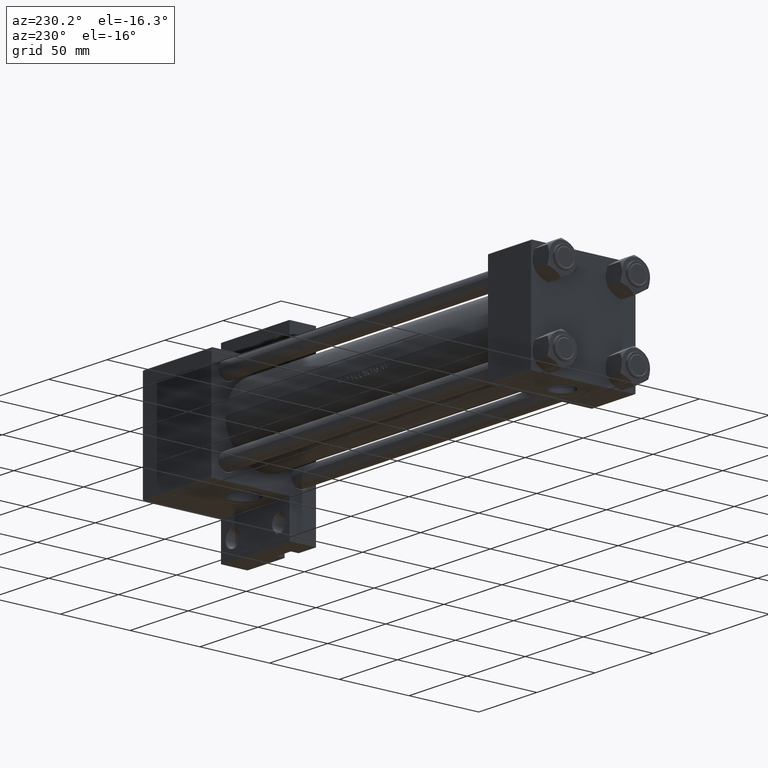
[diagram: clean part render]
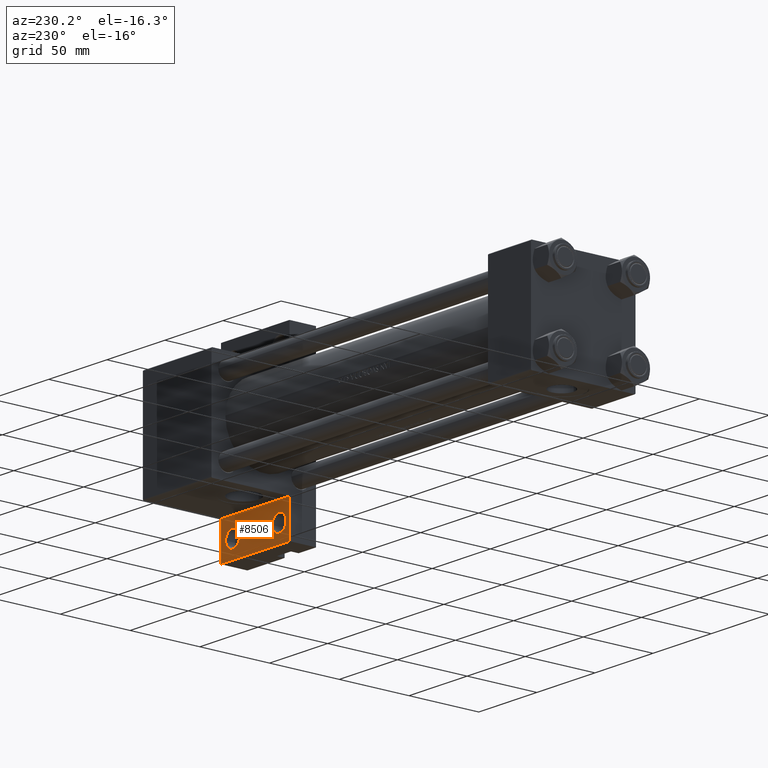
[diagram: same view with one face highlighted and labeled with its STEP entity id]
A machine part, auxiliary view. The second image highlights one B-rep face of the part: STEP entity #8506.
In plain terms, the highlighted planar face has unit normal (0, 1, 0).
Its self-contained STEP definition (entity closure, byte-faithful):
#1195 = PLANE ( 'NONE',  #15502 ) ;
#1897 = AXIS2_PLACEMENT_3D ( 'NONE', #43182, #22023, #47280 ) ;
#2372 = AXIS2_PLACEMENT_3D ( 'NONE', #33907, #22842, #12000 ) ;
#2761 = DIRECTION ( 'NONE',  ( 1.000000000000000000, 0.000000000000000000, 0.000000000000000000 ) ) ;
#3318 = ORIENTED_EDGE ( 'NONE', *, *, #46120, .F. ) ;
#3678 = ORIENTED_EDGE ( 'NONE', *, *, #40528, .F. ) ;
#3940 = VERTEX_POINT ( 'NONE', #12076 ) ;
#4226 = VERTEX_POINT ( 'NONE', #7461 ) ;
#5066 = CARTESIAN_POINT ( 'NONE',  ( 274.9999999999999432, 63.49999999999997158, -18.50000000000000000 ) ) ;
#5341 = VERTEX_POINT ( 'NONE', #25571 ) ;
#6385 = DIRECTION ( 'NONE',  ( -0.000000000000000000, -0.000000000000000000, -1.000000000000000000 ) ) ;
#7353 = EDGE_LOOP ( 'NONE', ( #32537, #11378 ) ) ;
#7368 = CARTESIAN_POINT ( 'NONE',  ( 278.0004999999999313, 51.00000000000001421, -18.50000000000000000 ) ) ;
#7461 = CARTESIAN_POINT ( 'NONE',  ( 318.0004999999999313, 51.00000000000000000, -18.50000000000000000 ) ) ;
#8416 = CARTESIAN_POINT ( 'NONE',  ( 0.000000000000000000, 0.000000000000000000, -18.50000000000000000 ) ) ;
#8506 = ADVANCED_FACE ( 'NONE', ( #45247, #34176, #22644 ), #1195, .T. ) ;
#8918 = LINE ( 'NONE', #5066, #35507 ) ;
#9957 = VERTEX_POINT ( 'NONE', #37804 ) ;
#10127 = VERTEX_POINT ( 'NONE', #24074 ) ;
#10278 = LINE ( 'NONE', #39637, #19579 ) ;
#11378 = ORIENTED_EDGE ( 'NONE', *, *, #46878, .T. ) ;
#11630 = ORIENTED_EDGE ( 'NONE', *, *, #12049, .T. ) ;
#12000 = DIRECTION ( 'NONE',  ( 1.000000000000000000, 0.000000000000000000, 0.000000000000000000 ) ) ;
#12049 = EDGE_CURVE ( 'NONE', #32002, #4226, #44959, .T. ) ;
#12076 = CARTESIAN_POINT ( 'NONE',  ( 274.9999999999999432, 37.50000000000000000, -18.50000000000000355 ) ) ;
#12281 = DIRECTION ( 'NONE',  ( 0.000000000000000000, 0.000000000000000000, 1.000000000000000000 ) ) ;
#13633 = VERTEX_POINT ( 'NONE', #7368 ) ;
#15502 = AXIS2_PLACEMENT_3D ( 'NONE', #8416, #12281, #26951 ) ;
#15647 = EDGE_CURVE ( 'NONE', #28831, #13633, #40318, .T. ) ;
#16568 = DIRECTION ( 'NONE',  ( -0.000000000000000000, -0.000000000000000000, -1.000000000000000000 ) ) ;
#17297 = AXIS2_PLACEMENT_3D ( 'NONE', #21089, #6385, #2761 ) ;
#18200 = VECTOR ( 'NONE', #27155, 1000.000000000000000 ) ;
#18821 = AXIS2_PLACEMENT_3D ( 'NONE', #41827, #16568, #23550 ) ;
#19312 = EDGE_CURVE ( 'NONE', #9957, #3940, #31010, .T. ) ;
#19579 = VECTOR ( 'NONE', #25673, 1000.000000000000000 ) ;
#20047 = CARTESIAN_POINT ( 'NONE',  ( 289.9995000000000118, 51.00000000000001421, -18.50000000000000000 ) ) ;
#20596 = EDGE_CURVE ( 'NONE', #5341, #10127, #46107, .T. ) ;
#20605 = CARTESIAN_POINT ( 'NONE',  ( 274.9999999999999432, 63.49999999999997158, -18.50000000000000000 ) ) ;
#21089 = CARTESIAN_POINT ( 'NONE',  ( 284.0000000000000000, 51.00000000000001421, -18.50000000000000000 ) ) ;
#22023 = DIRECTION ( 'NONE',  ( -0.000000000000000000, -0.000000000000000000, -1.000000000000000000 ) ) ;
#22644 = FACE_OUTER_BOUND ( 'NONE', #43641, .T. ) ;
#22842 = DIRECTION ( 'NONE',  ( -0.000000000000000000, -0.000000000000000000, -1.000000000000000000 ) ) ;
#23550 = DIRECTION ( 'NONE',  ( 1.000000000000000000, 0.000000000000000000, 0.000000000000000000 ) ) ;
#24074 = CARTESIAN_POINT ( 'NONE',  ( 333.9999999999999432, 63.49999999999997158, -18.50000000000000000 ) ) ;
#25571 = CARTESIAN_POINT ( 'NONE',  ( 274.9999999999999432, 63.49999999999997158, -18.50000000000000000 ) ) ;
#25673 = DIRECTION ( 'NONE',  ( 0.000000000000000000, -1.000000000000000000, 0.000000000000000000 ) ) ;
#26108 = CARTESIAN_POINT ( 'NONE',  ( 329.9995000000000118, 51.00000000000000000, -18.50000000000000000 ) ) ;
#26951 = DIRECTION ( 'NONE',  ( 1.000000000000000000, 0.000000000000000000, -0.000000000000000000 ) ) ;
#27155 = DIRECTION ( 'NONE',  ( -1.000000000000000000, 1.058475341273983980E-15, -0.000000000000000000 ) ) ;
#28831 = VERTEX_POINT ( 'NONE', #20047 ) ;
#29027 = ORIENTED_EDGE ( 'NONE', *, *, #35182, .T. ) ;
#30356 = CIRCLE ( 'NONE', #17297, 5.999500000000046462 ) ;
#30771 = CARTESIAN_POINT ( 'NONE',  ( 274.9999999999999432, 37.50000000000000000, -18.50000000000000000 ) ) ;
#31010 = LINE ( 'NONE', #30771, #18200 ) ;
#32002 = VERTEX_POINT ( 'NONE', #26108 ) ;
#32392 = CIRCLE ( 'NONE', #2372, 5.999500000000046462 ) ;
#32537 = ORIENTED_EDGE ( 'NONE', *, *, #15647, .T. ) ;
#33907 = CARTESIAN_POINT ( 'NONE',  ( 323.9999999999999432, 51.00000000000000000, -18.50000000000000000 ) ) ;
#34176 = FACE_BOUND ( 'NONE', #7353, .T. ) ;
#34364 = VECTOR ( 'NONE', #35270, 1000.000000000000000 ) ;
#35182 = EDGE_CURVE ( 'NONE', #4226, #32002, #32392, .T. ) ;
#35270 = DIRECTION ( 'NONE',  ( 1.000000000000000000, 0.000000000000000000, 0.000000000000000000 ) ) ;
#35507 = VECTOR ( 'NONE', #46214, 1000.000000000000000 ) ;
#37804 = CARTESIAN_POINT ( 'NONE',  ( 333.9999999999999432, 37.49999999999993605, -18.50000000000000000 ) ) ;
#39378 = ORIENTED_EDGE ( 'NONE', *, *, #19312, .F. ) ;
#39637 = CARTESIAN_POINT ( 'NONE',  ( 333.9999999999999432, 63.49999999999997158, -18.50000000000000000 ) ) ;
#40318 = CIRCLE ( 'NONE', #18821, 5.999500000000046462 ) ;
#40528 = EDGE_CURVE ( 'NONE', #3940, #5341, #8918, .T. ) ;
#41827 = CARTESIAN_POINT ( 'NONE',  ( 284.0000000000000000, 51.00000000000001421, -18.50000000000000000 ) ) ;
#42089 = ORIENTED_EDGE ( 'NONE', *, *, #20596, .F. ) ;
#43182 = CARTESIAN_POINT ( 'NONE',  ( 323.9999999999999432, 51.00000000000000000, -18.50000000000000000 ) ) ;
#43641 = EDGE_LOOP ( 'NONE', ( #3678, #39378, #3318, #42089 ) ) ;
#43826 = EDGE_LOOP ( 'NONE', ( #11630, #29027 ) ) ;
#44959 = CIRCLE ( 'NONE', #1897, 5.999500000000046462 ) ;
#45247 = FACE_BOUND ( 'NONE', #43826, .T. ) ;
#46107 = LINE ( 'NONE', #20605, #34364 ) ;
#46120 = EDGE_CURVE ( 'NONE', #10127, #9957, #10278, .T. ) ;
#46214 = DIRECTION ( 'NONE',  ( -0.000000000000000000, 1.000000000000000000, -0.000000000000000000 ) ) ;
#46878 = EDGE_CURVE ( 'NONE', #13633, #28831, #30356, .T. ) ;
#47280 = DIRECTION ( 'NONE',  ( 1.000000000000000000, 0.000000000000000000, 0.000000000000000000 ) ) ;